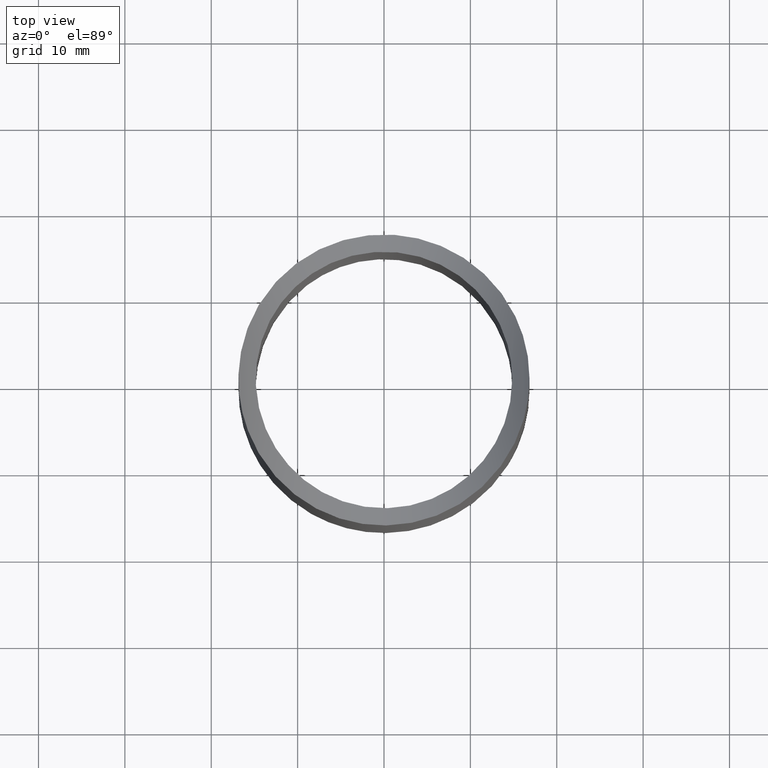
[diagram: clean part render]
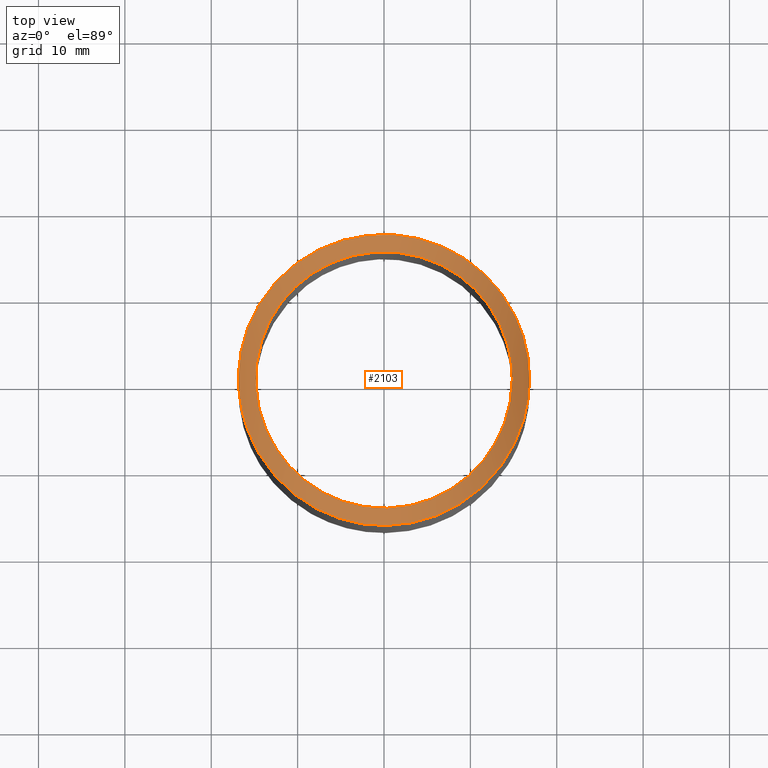
[diagram: same view with one face highlighted and labeled with its STEP entity id]
A machine part, top view. The second image highlights one B-rep face of the part: STEP entity #2103.
In plain terms, the highlighted cylindrical surface (partial cylindrical patch) has radius 21.2 mm, axis along (-0, 1, -0).
Its self-contained STEP definition (entity closure, byte-faithful):
#16 = B_SPLINE_CURVE_WITH_KNOTS ( 'NONE', 3,
 ( #2618, #9802, #12688, #4018, #5204, #7553, #11053, #7407, #9407, #12483, #3064, #11181, #6338, #8245, #2993, #4054, #1122, #9067, #4187, #2069, #9196, #12099, #12148, #2191, #6226, #6054, #3034, #5025, #6092, #10091, #10180, #5198, #9107, #4096, #5160, #4140, #11151, #11239, #6182, #5114, #2112, #66, #108, #4013, #12191, #10046, #3075, #7117, #11195, #12237, #7201, #11104, #8202, #10134, #2149, #11063, #3164, #7244, #13106, #10225, #6139, #7067, #5068, #12286, #3120, #149, #24, #7164, #1166, #1038, #2026, #996, #8077, #8118, #1076, #8163, #9150, #372, #6410, #2323, #4270, #6317, #3301, #1307, #6360, #5378, #9418, #283, #11417, #11327, #8287, #8334, #6272, #12510, #10312, #6452, #12329, #327, #7371, #8370, #9370, #2277, #5243, #7463, #7418, #4322, #11375, #5425, #197, #4412, #5334, #12460, #3211, #10272, #2235, #7287, #5293, #10453, #12373, #10362 ),
 .UNSPECIFIED., .T., .F.,
 ( 4, 2, 2, 2, 2, 2, 2, 2, 2, 2, 2, 2, 2, 2, 2, 2, 2, 2, 2, 2, 2, 2, 2, 2, 2, 2, 2, 2, 2, 2, 2, 2, 2, 2, 2, 2, 2, 2, 2, 2, 2, 2, 2, 2, 2, 2, 2, 2, 2, 2, 2, 2, 2, 2, 2, 2, 2, 2, 2, 4 ),
 ( 0.000000000000000000, 0.003488034584528456120, 0.004360043230660566246, 0.005232051876792678108, 0.006976069169056897494, 0.008720086461321116880, 0.01046410375358534060, 0.01395213833811378978, 0.01569615563037801351, 0.01744017292264223723, 0.02092820750717068815, 0.02267222479943490840, 0.02441624209169913212, 0.02616025938396335584, 0.02790427667622757610, 0.02964829396849179982, 0.03052030261462391342, 0.03139231126075602701, 0.03488034584528446752, 0.03662436313754869471, 0.03836838042981291497, 0.04011239772207713522, 0.04185641501434136241, 0.04534444959886980292, 0.04708846689113402317, 0.04883248418339824343, 0.05057650147566247062, 0.05232051876792669087, 0.05406453606019091113, 0.05493654470632301778, 0.05580855335245512444, 0.05755257064471935163, 0.05842457929085146523, 0.05929658793698357883, 0.06278462252151202627, 0.06452863981377625346, 0.06627265710604048066, 0.06976069169056892116, 0.07150470898283316223, 0.07324872627509738943, 0.07673676085962585769, 0.07848077815189008488, 0.08022479544415431207, 0.08196881273641853927, 0.08371283002868276646, 0.08545684732094699365, 0.08632885596707910725, 0.08720086461321122084, 0.09068889919773968911, 0.09243291649000391630, 0.09417693378226815737, 0.09592095107453239844, 0.09766496836679663951, 0.1011530029513251216, 0.1028970202435893488, 0.1046410375358535899, 0.1063850548281178310, 0.1081290721203820721, 0.1098730894126463131, 0.1116171067049105403 ),
 .UNSPECIFIED. ) ;
#24 = CARTESIAN_POINT ( 'NONE',  ( -16.55476409013702010, -3.153307364517309974, 30.78157480463063322 ) ) ;
#59 = CARTESIAN_POINT ( 'NONE',  ( -14.63968342570538539, -2.539688358878932295, 28.69075366799813409 ) ) ;
#66 = CARTESIAN_POINT ( 'NONE',  ( -9.994791040851373154, 13.57631378136462530, 25.32230521733956508 ) ) ;
#103 = CARTESIAN_POINT ( 'NONE',  ( -14.84882463106292327, -0.5354354199674785653, 28.89382656185967591 ) ) ;
#108 = CARTESIAN_POINT ( 'NONE',  ( -10.42069623016464242, 13.25206040174214372, 25.55676161521162726 ) ) ;
#142 = CARTESIAN_POINT ( 'NONE',  ( 6.766583398648191583, -13.25456488113425024, 23.91233643080122562 ) ) ;
#149 = CARTESIAN_POINT ( 'NONE',  ( -16.60641569126075368, -2.869196171511602333, 30.84653100392362290 ) ) ;
#163 = EDGE_LOOP ( 'NONE', ( #2137 ) ) ;
#191 = CARTESIAN_POINT ( 'NONE',  ( 14.84999999999999787, -1.022078380469964909, 28.89498017185701784 ) ) ;
#197 = CARTESIAN_POINT ( 'NONE',  ( 14.55453338318510248, -8.507048814336098275, 28.60647660889669552 ) ) ;
#278 = CARTESIAN_POINT ( 'NONE',  ( -6.305414289446934717, 13.45368617166488612, 23.77904236393999327 ) ) ;
#283 = CARTESIAN_POINT ( 'NONE',  ( -1.218559435307935868, -16.81613143072528516, 22.85194368814141797 ) ) ;
#320 = CARTESIAN_POINT ( 'NONE',  ( -1.042450288544810366, 14.84763967676929575, 22.82665333740894553 ) ) ;
#327 = CARTESIAN_POINT ( 'NONE',  ( 7.181140703023856098, -15.25348539933590075, 24.07089852805831143 ) ) ;
#366 = CARTESIAN_POINT ( 'NONE',  ( -2.039840482971174040, 14.74371743534629253, 22.89983089415597917 ) ) ;
#372 = CARTESIAN_POINT ( 'NONE',  ( -10.46238427054360898, -13.21900461332810828, 25.58045668143140006 ) ) ;
#410 = CARTESIAN_POINT ( 'NONE',  ( -14.03846989301306536, 4.866578523952101776, 28.13791582197551477 ) ) ;
#452 = CARTESIAN_POINT ( 'NONE',  ( 3.468010599276279748, 14.44801405734571098, 23.10473731706010980 ) ) ;
#756 = EDGE_CURVE ( 'NONE', #5934, #5934, #1001, .T. ) ;
#996 = CARTESIAN_POINT ( 'NONE',  ( -14.56266065314405900, -8.493040743961897121, 28.61418347935973472 ) ) ;
#1001 = B_SPLINE_CURVE_WITH_KNOTS ( 'NONE', 3,
 ( #1932, #191, #11275, #9144, #5239, #12322, #4182, #4091, #9280, #1254, #9321, #7281, #12280, #3205, #6219, #9191, #4265, #8240, #142, #1159, #4223, #4134, #3116, #6311, #8329, #10173, #8196, #2271, #3158, #11323, #2143, #10220, #6134, #11232, #7325, #11188, #12365, #12232, #1208, #10307, #7238, #2184, #9236, #5109, #7195, #10266, #8282, #2229, #5287, #11144, #12185, #59, #7158, #3249, #103, #6179, #5153, #1117, #1071, #8156, #3294, #5464, #9500, #410, #5421, #8411, #6493, #7412, #11501, #3465, #6354, #10535, #1349, #5373, #5328, #6447, #278, #4487, #6541, #1436, #8454, #6404, #11459, #366, #320, #2362, #12411, #10356, #7499, #452, #9412, #3380, #7364, #5505, #7542, #9455, #2410, #4317, #1477, #12505, #8502, #10447, #11368, #2451, #8547, #2496, #12543, #7457, #3424, #1395, #4406, #11544, #10490, #4448 ),
 .UNSPECIFIED., .T., .F.,
 ( 4, 2, 2, 2, 2, 2, 2, 2, 2, 2, 2, 2, 2, 2, 2, 2, 2, 2, 2, 2, 2, 2, 2, 2, 2, 2, 2, 2, 2, 2, 2, 2, 2, 2, 2, 2, 2, 2, 2, 2, 2, 2, 2, 2, 2, 2, 2, 2, 2, 2, 2, 2, 2, 2, 2, 2, 4 ),
 ( 0.000000000000000000, 0.003008249472028573512, 0.004512374208042860269, 0.006016498944057147025, 0.007520623680071432914, 0.009024748416085720537, 0.01203299788811428711, 0.01353712262412857213, 0.01504124736014285542, 0.01804949683217142026, 0.01880155920017856364, 0.01955362156818570354, 0.02105774630419999030, 0.02256187104021427706, 0.02406599577622856381, 0.02707424524825713386, 0.02857836998427141714, 0.03008249472028570390, 0.03158661945629999412, 0.03309074419231428088, 0.03609899366434284745, 0.03760311840035714115, 0.03910724313637142791, 0.04061136787238571466, 0.04211549260840000142, 0.04512374208042857493, 0.04662786681644286169, 0.04813199155245714844, 0.04963611628847143520, 0.05038817865647857858, 0.05114024102448572195, 0.05264436576050000871, 0.05414849049651429547, 0.05715673996854286898, 0.05866086470455715574, 0.06016498944057144249, 0.06317323891260001600, 0.06467736364861430276, 0.06618148838462858952, 0.06768561312064287627, 0.06843767548865001271, 0.06918973785665716303, 0.07219798732868573654, 0.07370211206470002330, 0.07520623680071431005, 0.07671036153672859681, 0.07821448627274288357, 0.08122273574477145708, 0.08272686048078574383, 0.08423098521680003059, 0.08573510995281431735, 0.08723923468882860410, 0.09024748416085719149, 0.09175160889687147825, 0.09325573363288576501, 0.09475985836890005176, 0.09626398310491432464 ),
 .UNSPECIFIED. ) ;
#1038 = CARTESIAN_POINT ( 'NONE',  ( -15.30126194324313715, -7.077023726170883933, 29.34825942966148205 ) ) ;
#1071 = CARTESIAN_POINT ( 'NONE',  ( -14.71979861049353566, 1.978268142494230108, 28.76818922553738389 ) ) ;
#1076 = CARTESIAN_POINT ( 'NONE',  ( -12.76849391860199923, -11.04515648032478659, 27.07783980516392575 ) ) ;
#1117 = CARTESIAN_POINT ( 'NONE',  ( -14.75156772750817424, 1.725603251462532350, 28.79895405805062580 ) ) ;
#1122 = CARTESIAN_POINT ( 'NONE',  ( 11.27517103013108368, 12.53305458214000900, 26.06571685462159493 ) ) ;
#1159 = CARTESIAN_POINT ( 'NONE',  ( 5.648936155405790416, -13.73576528190513102, 23.59013669648573952 ) ) ;
#1166 = CARTESIAN_POINT ( 'NONE',  ( -15.93264771859254481, -5.588807044560827997, 30.02599789362569638 ) ) ;
#1208 = CARTESIAN_POINT ( 'NONE',  ( -7.951602794355302706, -12.55075226376630049, 24.36804973485697801 ) ) ;
#1254 = CARTESIAN_POINT ( 'NONE',  ( 12.83490407123005994, -7.484141946869301343, 27.14935957658246579 ) ) ;
#1307 = CARTESIAN_POINT ( 'NONE',  ( -4.633092338830734569, -16.21049629165413108, 23.32993405497780870 ) ) ;
#1349 = CARTESIAN_POINT ( 'NONE',  ( -9.180628718901417074, 11.71087505510741700, 24.89682288117719011 ) ) ;
#1395 = CARTESIAN_POINT ( 'NONE',  ( 14.64420660872207947, 2.513609085024386847, 28.69508169606637438 ) ) ;
#1436 = CARTESIAN_POINT ( 'NONE',  ( -4.242900971634601781, 14.23311275967979306, 23.25251746835640176 ) ) ;
#1477 = CARTESIAN_POINT ( 'NONE',  ( 10.20873395633544511, 10.79459491755278222, 25.44097040580893676 ) ) ;
#1932 = CARTESIAN_POINT ( 'NONE',  ( 14.85000000000000142, 1.626303258728256651E-16, 28.89498017185702139 ) ) ;
#2026 = CARTESIAN_POINT ( 'NONE',  ( -15.06714064397420749, -7.562016873290339447, 29.10703687006266449 ) ) ;
#2069 = CARTESIAN_POINT ( 'NONE',  ( 8.708616580301018928, 14.46501147868135995, 24.67090779707388037 ) ) ;
#2103 = ADVANCED_FACE ( 'NONE', ( #2276, #7200 ), #11122, .F. ) ;
#2112 = CARTESIAN_POINT ( 'NONE',  ( -9.108053657860992303, 14.18645489211024824, 24.87480421381646423 ) ) ;
#2137 = ORIENTED_EDGE ( 'NONE', *, *, #756, .T. ) ;
#2143 = CARTESIAN_POINT ( 'NONE',  ( -1.975757420299651734, -14.75225499257278194, 22.89384598893459000 ) ) ;
#2149 = CARTESIAN_POINT ( 'NONE',  ( -16.37462835397577621, 4.014395240680865840, 30.55852878039925358 ) ) ;
#2184 = CARTESIAN_POINT ( 'NONE',  ( -10.85600257648951228, -10.14358103451657378, 25.81142779856725156 ) ) ;
#2191 = CARTESIAN_POINT ( 'NONE',  ( 4.608666158872870788, 16.21741378191370941, 23.32451087310631621 ) ) ;
#2229 = CARTESIAN_POINT ( 'NONE',  ( -13.26470119852984908, -6.692857623037583359, 27.48503913512155705 ) ) ;
#2235 = CARTESIAN_POINT ( 'NONE',  ( 16.37965679222789106, -3.993839940836798164, 30.56465935008198542 ) ) ;
#2271 = CARTESIAN_POINT ( 'NONE',  ( 1.055357571539615735, -14.82104639308031402, 22.84530496254446419 ) ) ;
#2276 = FACE_BOUND ( 'NONE', #163, .T. ) ;
#2277 = CARTESIAN_POINT ( 'NONE',  ( 9.995180183919519123, -13.57606078780679582, 25.32249238037316630 ) ) ;
#2323 = CARTESIAN_POINT ( 'NONE',  ( -8.726966367399729307, -14.45335385199788902, 24.67956541262542558 ) ) ;
#2362 = CARTESIAN_POINT ( 'NONE',  ( 0.4699493523302542552, 14.85112114454863885, 22.82421467105257662 ) ) ;
#2410 = CARTESIAN_POINT ( 'NONE',  ( 9.135684806652815126, 11.71688488068667056, 24.89009534328083006 ) ) ;
#2451 = CARTESIAN_POINT ( 'NONE',  ( 12.84858299248709201, 7.505008801628276771, 27.14981320772259465 ) ) ;
#2496 = CARTESIAN_POINT ( 'NONE',  ( 13.85629676120118070, 5.362177137824668982, 27.97811738429405537 ) ) ;
#2618 = CARTESIAN_POINT ( 'NONE',  ( 16.85000000000000853, 9.215718466126787689E-16, 31.15963953089540084 ) ) ;
#2993 = CARTESIAN_POINT ( 'NONE',  ( 12.75930261612571393, 11.05511620359124336, 27.07121819242074778 ) ) ;
#3034 = CARTESIAN_POINT ( 'NONE',  ( 2.363922115697564941, 16.69367290201030585, 22.94907085999129848 ) ) ;
#3064 = CARTESIAN_POINT ( 'NONE',  ( 15.06600544362908067, 7.564417200418764864, 29.10585610091618847 ) ) ;
#3075 = CARTESIAN_POINT ( 'NONE',  ( -13.39389977049335911, 10.27758179155229357, 27.57350999852649309 ) ) ;
#3116 = CARTESIAN_POINT ( 'NONE',  ( 4.722722915636610175, -14.08120449735659108, 23.35630852601813601 ) ) ;
#3120 = CARTESIAN_POINT ( 'NONE',  ( -16.69471313242517496, -2.300409139174631523, 30.95856817575938535 ) ) ;
#3158 = CARTESIAN_POINT ( 'NONE',  ( 0.5430236230582313750, -14.84871434085134823, 22.82590056649464927 ) ) ;
#3164 = CARTESIAN_POINT ( 'NONE',  ( -16.69668131234897857, 2.340504293676494818, 30.96090336186388114 ) ) ;
#3205 = CARTESIAN_POINT ( 'NONE',  ( 10.22384875093736589, -10.78027464046264505, 25.44929097198022916 ) ) ;
#3211 = CARTESIAN_POINT ( 'NONE',  ( 15.90281625341952498, -5.597182806816921818, 30.00339353574807788 ) ) ;
#3249 = CARTESIAN_POINT ( 'NONE',  ( -14.82232220753867047, -1.036460113925612214, 28.86769057165713903 ) ) ;
#3294 = CARTESIAN_POINT ( 'NONE',  ( -14.60033200529916542, 2.722993268078868656, 28.65376142518395497 ) ) ;
#3301 = CARTESIAN_POINT ( 'NONE',  ( -5.715230646049785257, -15.86133264591338765, 23.60228133300067555 ) ) ;
#3380 = CARTESIAN_POINT ( 'NONE',  ( 4.897576337131939184, 14.02792802467772582, 23.39277724995771734 ) ) ;
#3381 = ORIENTED_EDGE ( 'NONE', *, *, #9884, .T. ) ;
#3424 = CARTESIAN_POINT ( 'NONE',  ( 14.44266306515989307, 3.490057509199949948, 28.50505586380914025 ) ) ;
#3465 = CARTESIAN_POINT ( 'NONE',  ( -11.20217814193923189, 9.759876180064354756, 26.02286608165332993 ) ) ;
#3857 = AXIS2_PLACEMENT_3D ( 'NONE', #10025, #11042, #6032 ) ;
#4013 = CARTESIAN_POINT ( 'NONE',  ( -11.23939550682409561, 12.56519014794332811, 26.04326683548215726 ) ) ;
#4018 = CARTESIAN_POINT ( 'NONE',  ( 16.43685454055621520, 3.719315587397255207, 30.63551266623164082 ) ) ;
#4054 = CARTESIAN_POINT ( 'NONE',  ( 11.66102715465259365, 12.17440635430119222, 26.31460542772481404 ) ) ;
#4091 = CARTESIAN_POINT ( 'NONE',  ( 13.49215805804097457, -6.222029440599342820, 27.67075749353879388 ) ) ;
#4096 = CARTESIAN_POINT ( 'NONE',  ( -2.857251977327141645, 16.60853101359290562, 23.01642874321899868 ) ) ;
#4134 = CARTESIAN_POINT ( 'NONE',  ( 4.958827252707279420, -13.99976851913664433, 23.41172800978674928 ) ) ;
#4140 = CARTESIAN_POINT ( 'NONE',  ( -4.563070841124321042, 16.26170907903825835, 23.29001353415834785 ) ) ;
#4182 = CARTESIAN_POINT ( 'NONE',  ( 13.86511744738337804, -5.339522225172391501, 27.98573271020251951 ) ) ;
#4187 = CARTESIAN_POINT ( 'NONE',  ( 10.03345984452741924, 13.54771931003610419, 25.34305937586326252 ) ) ;
#4223 = CARTESIAN_POINT ( 'NONE',  ( 5.421586111606212732, -13.82714324602303968, 23.52857704624679869 ) ) ;
#4265 = CARTESIAN_POINT ( 'NONE',  ( 8.771364284212022966, -11.99205178433446761, 24.71997983258699350 ) ) ;
#4270 = CARTESIAN_POINT ( 'NONE',  ( -7.784169194823971516, -14.98589303535731077, 24.27627521433478819 ) ) ;
#4317 = CARTESIAN_POINT ( 'NONE',  ( 9.862659689964765164, 11.11188876985884555, 25.25445773430654839 ) ) ;
#4322 = CARTESIAN_POINT ( 'NONE',  ( 12.73972826121695512, -11.07831283270831157, 27.05614233278994618 ) ) ;
#4406 = CARTESIAN_POINT ( 'NONE',  ( 14.72061292428705492, 2.019618802557090920, 28.76889631430471894 ) ) ;
#4412 = CARTESIAN_POINT ( 'NONE',  ( 15.06117546962990694, -7.573989371841300056, 29.10098247664966564 ) ) ;
#4448 = CARTESIAN_POINT ( 'NONE',  ( 14.85000000000000142, 1.626303258728256651E-16, 28.89498017185702139 ) ) ;
#4487 = CARTESIAN_POINT ( 'NONE',  ( -5.409915752190937788, 13.83808991593149251, 23.52158902726440459 ) ) ;
#4820 = VERTEX_POINT ( 'NONE', #5633 ) ;
#5025 = CARTESIAN_POINT ( 'NONE',  ( 1.196877386896234796, 16.81767900898140056, 22.85071367425837963 ) ) ;
#5068 = CARTESIAN_POINT ( 'NONE',  ( -16.82038613588199283, -1.153393338050496375, 31.12058398438669826 ) ) ;
#5109 = CARTESIAN_POINT ( 'NONE',  ( -11.76535505781020063, -9.072885345401457968, 26.38581115410169886 ) ) ;
#5114 = CARTESIAN_POINT ( 'NONE',  ( -8.647231188405044122, 14.47234560185099284, 24.66174318504227969 ) ) ;
#5153 = CARTESIAN_POINT ( 'NONE',  ( -14.82687259197063945, 0.9706580985830020047, 28.87215370222732602 ) ) ;
#5160 = CARTESIAN_POINT ( 'NONE',  ( -3.145150991523118833, 16.55640114412084074, 23.05762998864650726 ) ) ;
#5198 = CARTESIAN_POINT ( 'NONE',  ( -1.993930436648130966, 16.73412311464078428, 22.91699069149763446 ) ) ;
#5204 = CARTESIAN_POINT ( 'NONE',  ( 16.37165564442995347, 3.996236745770081367, 30.55573089383639029 ) ) ;
#5239 = CARTESIAN_POINT ( 'NONE',  ( 14.32409024340396897, -3.947673342937946916, 28.39493170033822267 ) ) ;
#5243 = CARTESIAN_POINT ( 'NONE',  ( 10.42167427611399155, -13.25131939410903215, 25.55729806795227077 ) ) ;
#5287 = CARTESIAN_POINT ( 'NONE',  ( -13.47478509253593160, -6.259823952817777482, 27.65639499372817056 ) ) ;
#5293 = CARTESIAN_POINT ( 'NONE',  ( 16.69938508037639835, -2.320488834739478534, 30.96437022078895041 ) ) ;
#5328 = CARTESIAN_POINT ( 'NONE',  ( -7.591350487219891363, 12.77220642373018578, 24.22562535036222187 ) ) ;
#5334 = CARTESIAN_POINT ( 'NONE',  ( 15.29304033322279111, -7.094640924644827429, 29.33969853746524237 ) ) ;
#5373 = CARTESIAN_POINT ( 'NONE',  ( -8.002916656493315628, 12.51808030597684862, 24.38890820758710376 ) ) ;
#5378 = CARTESIAN_POINT ( 'NONE',  ( -2.958333458842771435, -16.59821557124749702, 23.02469510045565926 ) ) ;
#5421 = CARTESIAN_POINT ( 'NONE',  ( -13.86995888693830814, 5.327233501816452055, 27.98989845505136032 ) ) ;
#5425 = CARTESIAN_POINT ( 'NONE',  ( 14.27882436257640109, -8.961815852038725438, 28.34994163430497949 ) ) ;
#5464 = CARTESIAN_POINT ( 'NONE',  ( -14.45123279058774912, 3.454260969310928520, 28.51305135427062609 ) ) ;
#5505 = CARTESIAN_POINT ( 'NONE',  ( 6.721704947727878299, 13.27802546947837392, 23.89686323416569280 ) ) ;
#5633 = CARTESIAN_POINT ( 'NONE',  ( 16.85000000000000142, 0.000000000000000000, 31.15963953089538663 ) ) ;
#5934 = VERTEX_POINT ( 'NONE', #11713 ) ;
#6032 = DIRECTION ( 'NONE',  ( 0.000000000000000000, 0.000000000000000000, 1.000000000000000000 ) ) ;
#6054 = CARTESIAN_POINT ( 'NONE',  ( 2.935858920294800889, 16.60217875596199377, 23.02156045030877607 ) ) ;
#6092 = CARTESIAN_POINT ( 'NONE',  ( 0.6127552656414515520, 16.84887386415253019, 22.82589506494136344 ) ) ;
#6134 = CARTESIAN_POINT ( 'NONE',  ( -3.942216867598557162, -14.32575806810458197, 23.18913507854782807 ) ) ;
#6139 = CARTESIAN_POINT ( 'NONE',  ( -16.84978754025977921, 0.3048055059478298467, 31.15936126864234268 ) ) ;
#6179 = CARTESIAN_POINT ( 'NONE',  ( -14.85109909157401020, 0.4681236858633965880, 28.89605891638828794 ) ) ;
#6182 = CARTESIAN_POINT ( 'NONE',  ( -7.687648266521955875, 15.00411472148166325, 24.26113433971042355 ) ) ;
#6219 = CARTESIAN_POINT ( 'NONE',  ( 9.876524031189015673, -11.09961843200092524, 25.26173230998533015 ) ) ;
#6226 = CARTESIAN_POINT ( 'NONE',  ( 4.058234055895876935, 16.36405644674807647, 23.20927332844286539 ) ) ;
#6272 = CARTESIAN_POINT ( 'NONE',  ( 2.268151588632923321, -16.69918781907057337, 22.94468587042166163 ) ) ;
#6311 = CARTESIAN_POINT ( 'NONE',  ( 4.011011730049459878, -14.30671213935695540, 23.20223695472847680 ) ) ;
#6317 = CARTESIAN_POINT ( 'NONE',  ( -6.249404769565356510, -15.65820503941425734, 23.75985022990128570 ) ) ;
#6338 = CARTESIAN_POINT ( 'NONE',  ( 14.28582278510367587, 8.950453626376383198, 28.35639237131934820 ) ) ;
#6354 = CARTESIAN_POINT ( 'NONE',  ( -10.88684439012736860, 10.11031077034298775, 25.82992319702066908 ) ) ;
#6360 = CARTESIAN_POINT ( 'NONE',  ( -4.081890298430192132, -16.35819881878482107, 23.21388003208102901 ) ) ;
#6404 = CARTESIAN_POINT ( 'NONE',  ( -3.519467371716863191, 14.42908677575285203, 23.11773022390127252 ) ) ;
#6410 = CARTESIAN_POINT ( 'NONE',  ( -10.04117084798385306, -13.54184654649417929, 25.34730385353622140 ) ) ;
#6447 = CARTESIAN_POINT ( 'NONE',  ( -6.741536623641492199, 13.24045101581848982, 23.92038553742865759 ) ) ;
#6452 = CARTESIAN_POINT ( 'NONE',  ( 4.553832379075150705, -16.26448532530344337, 23.28783480138556072 ) ) ;
#6493 = CARTESIAN_POINT ( 'NONE',  ( -12.85819171063240773, 7.487732140332075126, 27.15735018066240514 ) ) ;
#6541 = CARTESIAN_POINT ( 'NONE',  ( -4.950543937199634037, 14.00926281662553485, 23.40546868971070538 ) ) ;
#7067 = CARTESIAN_POINT ( 'NONE',  ( -16.85041214219169348, -0.5736696189260906964, 31.16017932075633112 ) ) ;
#7117 = CARTESIAN_POINT ( 'NONE',  ( -14.27322093724248120, 8.970693881338300812, 28.34484749247271651 ) ) ;
#7158 = CARTESIAN_POINT ( 'NONE',  ( -14.71822229448144448, -2.037011949420603152, 28.76658601882701660 ) ) ;
#7164 = CARTESIAN_POINT ( 'NONE',  ( -16.26480880967746501, -4.547029472962409891, 30.42233871069397466 ) ) ;
#7195 = CARTESIAN_POINT ( 'NONE',  ( -12.04425194370499774, -8.699240954842657914, 26.57566927795544487 ) ) ;
#7200 = FACE_OUTER_BOUND ( 'NONE', #12774, .T. ) ;
#7201 = CARTESIAN_POINT ( 'NONE',  ( -15.28685858671097009, 7.107873146240879514, 29.33326496767993419 ) ) ;
#7238 = CARTESIAN_POINT ( 'NONE',  ( -9.857475223261548791, -11.14642520277175031, 25.24047979497517247 ) ) ;
#7244 = CARTESIAN_POINT ( 'NONE',  ( -16.78758264084560636, 1.477574321479142361, 31.07820441070628448 ) ) ;
#7281 = CARTESIAN_POINT ( 'NONE',  ( 11.80130999445691486, -9.062980031830573324, 26.40156720060182494 ) ) ;
#7287 = CARTESIAN_POINT ( 'NONE',  ( 16.61106262273884226, -2.883836446064370396, 30.85129415895204019 ) ) ;
#7325 = CARTESIAN_POINT ( 'NONE',  ( -5.350256947424568921, -13.86130094833920623, 23.50590784509005715 ) ) ;
#7364 = CARTESIAN_POINT ( 'NONE',  ( 5.366141996116707169, 13.85525945338516784, 23.50999763966325773 ) ) ;
#7371 = CARTESIAN_POINT ( 'NONE',  ( 7.683900622646631540, -15.00607227248791098, 24.25965049253109740 ) ) ;
#7407 = CARTESIAN_POINT ( 'NONE',  ( 15.90487270250956442, 5.591031431789052597, 30.00575465871712311 ) ) ;
#7412 = CARTESIAN_POINT ( 'NONE',  ( -12.07643386367189819, 8.654561040546367323, 26.59793997083406580 ) ) ;
#7418 = CARTESIAN_POINT ( 'NONE',  ( 11.63181766590042088, -12.20246350678815972, 26.29532094305800172 ) ) ;
#7457 = CARTESIAN_POINT ( 'NONE',  ( 14.31639251504350696, 3.975336673667563048, 28.38787382931094072 ) ) ;
#7463 = CARTESIAN_POINT ( 'NONE',  ( 11.24136333891619799, -12.56345934385020868, 26.04448110729708077 ) ) ;
#7499 = CARTESIAN_POINT ( 'NONE',  ( 2.488903979172041758, 14.64846629174582660, 22.96580141072881176 ) ) ;
#7542 = CARTESIAN_POINT ( 'NONE',  ( 7.565741213923386610, 12.81400793434171881, 24.20225533650550176 ) ) ;
#7553 = CARTESIAN_POINT ( 'NONE',  ( 16.22972857346203313, 4.538383754134050818, 30.38505024841372659 ) ) ;
#8077 = CARTESIAN_POINT ( 'NONE',  ( -14.29162032419619344, -8.941108165564608967, 28.36171386546280715 ) ) ;
#8118 = CARTESIAN_POINT ( 'NONE',  ( -13.42227891237702586, -10.23964040753259575, 27.59702980000847106 ) ) ;
#8156 = CARTESIAN_POINT ( 'NONE',  ( -14.64419349574168727, 2.476613178591222209, 28.69560526307306958 ) ) ;
#8163 = CARTESIAN_POINT ( 'NONE',  ( -11.66338928150708831, -12.17229251719185967, 26.31608926634027412 ) ) ;
#8196 = CARTESIAN_POINT ( 'NONE',  ( 2.059140359165246625, -14.71520087429668955, 22.91923769524821708 ) ) ;
#8202 = CARTESIAN_POINT ( 'NONE',  ( -15.89690430299303969, 5.613851343078686718, 29.99668573947647232 ) ) ;
#8240 = CARTESIAN_POINT ( 'NONE',  ( 7.600193638323555767, -12.79273646558957545, 24.21592135049489514 ) ) ;
#8245 = CARTESIAN_POINT ( 'NONE',  ( 13.41307785266284647, 10.25198778674706901, 27.58938826224732210 ) ) ;
#8282 = CARTESIAN_POINT ( 'NONE',  ( -12.81144491126041984, -7.524195660286290277, 27.13152544371852315 ) ) ;
#8287 = CARTESIAN_POINT ( 'NONE',  ( 1.112588759422263207, -16.82326292577762317, 22.84627444567894372 ) ) ;
#8329 = CARTESIAN_POINT ( 'NONE',  ( 3.529851409285365449, -14.43298966858329280, 23.11511555860909795 ) ) ;
#8334 = CARTESIAN_POINT ( 'NONE',  ( 1.979650176026427344, -16.73582586802688255, 22.91564063871739165 ) ) ;
#8370 = CARTESIAN_POINT ( 'NONE',  ( 8.645399450756229953, -14.47347926943289487, 24.66089820652724640 ) ) ;
#8411 = CARTESIAN_POINT ( 'NONE',  ( -13.30752336638674294, 6.660557565700396587, 27.51467637561992063 ) ) ;
#8454 = CARTESIAN_POINT ( 'NONE',  ( -4.003916530981642907, 14.30223227946313536, 23.20507606920517674 ) ) ;
#8502 = CARTESIAN_POINT ( 'NONE',  ( 11.18157445229064884, 9.783394182038625431, 26.01007253859787127 ) ) ;
#8547 = CARTESIAN_POINT ( 'NONE',  ( 13.29743061028497486, 6.679105743450392652, 27.50664821686086015 ) ) ;
#9067 = CARTESIAN_POINT ( 'NONE',  ( 10.46001579497637479, 13.22100633410530790, 25.57904102727576756 ) ) ;
#9107 = CARTESIAN_POINT ( 'NONE',  ( -2.282024476962674520, 16.69729186359154482, 22.94618790349588267 ) ) ;
#9144 = CARTESIAN_POINT ( 'NONE',  ( 14.44795666962252589, -3.467458691488791267, 28.51000157717251682 ) ) ;
#9150 = CARTESIAN_POINT ( 'NONE',  ( -11.27269707346088623, -12.53514532351717925, 26.06423822481189134 ) ) ;
#9191 = CARTESIAN_POINT ( 'NONE',  ( 9.148425549297892090, -11.70698792361307028, 24.89616701639233298 ) ) ;
#9196 = CARTESIAN_POINT ( 'NONE',  ( 7.760273162590312523, 14.99840731050423415, 24.26676567232548720 ) ) ;
#9236 = CARTESIAN_POINT ( 'NONE',  ( -11.17168871991021817, -9.794600516231964704, 26.00395857828872437 ) ) ;
#9280 = CARTESIAN_POINT ( 'NONE',  ( 13.28603568256477452, -6.650443522065433655, 27.50218976506184632 ) ) ;
#9321 = CARTESIAN_POINT ( 'NONE',  ( 12.58872779925378005, -7.891003646999037890, 26.96428466618887043 ) ) ;
#9370 = CARTESIAN_POINT ( 'NONE',  ( 9.107037764326616269, -14.18713912606667549, 24.87430076132086043 ) ) ;
#9407 = CARTESIAN_POINT ( 'NONE',  ( 15.71686554208496744, 6.098361508694393862, 29.79423311940516683 ) ) ;
#9412 = CARTESIAN_POINT ( 'NONE',  ( 3.949644876475323141, 14.32373289311504294, 23.19052916594402092 ) ) ;
#9418 = CARTESIAN_POINT ( 'NONE',  ( -2.385984480567156396, -16.69054347381467807, 22.95155038345631482 ) ) ;
#9455 = CARTESIAN_POINT ( 'NONE',  ( 8.752917842346148447, 12.00575337534034581, 24.71148554062005687 ) ) ;
#9500 = CARTESIAN_POINT ( 'NONE',  ( -14.32854243950816731, 3.931296863127937247, 28.39902956050781668 ) ) ;
#9802 = CARTESIAN_POINT ( 'NONE',  ( 16.85000000000000497, 1.181816974257915875, 31.15963953089539373 ) ) ;
#9884 = EDGE_CURVE ( 'NONE', #4820, #4820, #16, .T. ) ;
#10025 = CARTESIAN_POINT ( 'NONE',  ( -7.288179263425684655E-15, -16.85000000000000142, 44.02499999999999858 ) ) ;
#10046 = CARTESIAN_POINT ( 'NONE',  ( -12.73527001919717172, 11.08326113548437242, 27.05287231180940921 ) ) ;
#10091 = CARTESIAN_POINT ( 'NONE',  ( -0.5491712452227679453, 16.85106615170428768, 22.82415261111907512 ) ) ;
#10134 = CARTESIAN_POINT ( 'NONE',  ( -16.23008893253742002, 4.561919175372502799, 30.38354184288010984 ) ) ;
#10173 = CARTESIAN_POINT ( 'NONE',  ( 2.553914908471907275, -14.63723199192219937, 22.97361911977647964 ) ) ;
#10180 = CARTESIAN_POINT ( 'NONE',  ( -1.128217563670329548, 16.82219263763235162, 22.84712505124552351 ) ) ;
#10220 = CARTESIAN_POINT ( 'NONE',  ( -3.453080945496846521, -14.45168738145432030, 23.10220014458736415 ) ) ;
#10225 = CARTESIAN_POINT ( 'NONE',  ( -16.84185556484301571, 0.6005636208193545489, 31.14895412995364765 ) ) ;
#10266 = CARTESIAN_POINT ( 'NONE',  ( -12.56729503433856010, -7.924890762259290788, 26.94851783737005846 ) ) ;
#10272 = CARTESIAN_POINT ( 'NONE',  ( 16.23544751361628258, -4.542935636299709756, 30.38992549851719716 ) ) ;
#10307 = CARTESIAN_POINT ( 'NONE',  ( -9.133527232630701320, -11.74770862054930376, 24.87419314512271384 ) ) ;
#10312 = CARTESIAN_POINT ( 'NONE',  ( 3.132493783242030094, -16.55881203355355069, 23.05572614964555100 ) ) ;
#10356 = CARTESIAN_POINT ( 'NONE',  ( 1.991434687108508905, 14.72464534445752093, 22.91264919734913263 ) ) ;
#10362 = CARTESIAN_POINT ( 'NONE',  ( 16.85000000000000853, 9.215718466126787689E-16, 31.15963953089540084 ) ) ;
#10447 = CARTESIAN_POINT ( 'NONE',  ( 11.77657499125998797, 9.058404408531117724, 26.39328141822445417 ) ) ;
#10453 = CARTESIAN_POINT ( 'NONE',  ( 16.81884699925302940, -1.174953663156957040, 31.11857145031866168 ) ) ;
#10490 = CARTESIAN_POINT ( 'NONE',  ( 14.85000000000000320, 0.5110391902349790128, 28.89498017185702139 ) ) ;
#10535 = CARTESIAN_POINT ( 'NONE',  ( -9.898943506028555106, 11.10902678255388665, 25.26259823399168170 ) ) ;
#11042 = DIRECTION ( 'NONE',  ( -0.000000000000000000, 1.000000000000000000, -0.000000000000000000 ) ) ;
#11053 = CARTESIAN_POINT ( 'NONE',  ( 16.15279100600988471, 4.804723691820167453, 30.29388946145670403 ) ) ;
#11063 = CARTESIAN_POINT ( 'NONE',  ( -16.60739948715533387, 2.904841674388058070, 30.84666235395390643 ) ) ;
#11104 = CARTESIAN_POINT ( 'NONE',  ( -15.70777446802023825, 6.121742184620557303, 29.78418032654678527 ) ) ;
#11122 = CYLINDRICAL_SURFACE ( 'NONE', #3857, 21.20000000000000284 ) ;
#11144 = CARTESIAN_POINT ( 'NONE',  ( -14.04159870749304595, -4.928176394867379351, 28.13419264784720752 ) ) ;
#11151 = CARTESIAN_POINT ( 'NONE',  ( -5.641703537684155556, 15.91699381315877027, 23.56069811230852196 ) ) ;
#11181 = CARTESIAN_POINT ( 'NONE',  ( 14.55938141211966474, 8.498784648752831572, 28.61105217326022654 ) ) ;
#11188 = CARTESIAN_POINT ( 'NONE',  ( -6.249250332288379894, -13.47990295470586020, 23.76160288723667335 ) ) ;
#11195 = CARTESIAN_POINT ( 'NONE',  ( -14.54874586222459776, 8.516875777173675388, 28.60102398438430527 ) ) ;
#11232 = CARTESIAN_POINT ( 'NONE',  ( -4.889157883607646582, -14.03084292714444459, 23.39079354456933046 ) ) ;
#11239 = CARTESIAN_POINT ( 'NONE',  ( -7.186026968266546078, 15.25115632092071394, 24.07267847966635443 ) ) ;
#11275 = CARTESIAN_POINT ( 'NONE',  ( 14.74580186103794688, -2.015121408971227268, 28.79096444058477289 ) ) ;
#11323 = CARTESIAN_POINT ( 'NONE',  ( -0.9769159216564194947, -14.85243765203642319, 22.82329249637190571 ) ) ;
#11327 = CARTESIAN_POINT ( 'NONE',  ( 0.5324751576219249882, -16.85164486523669325, 22.82369264463234515 ) ) ;
#11368 = CARTESIAN_POINT ( 'NONE',  ( 12.05942334210180888, 8.678421179155039411, 26.58611207091345463 ) ) ;
#11375 = CARTESIAN_POINT ( 'NONE',  ( 13.39901119675901597, -10.27106971652703393, 27.57764098008038900 ) ) ;
#11417 = CARTESIAN_POINT ( 'NONE',  ( -0.6319328553525147552, -16.84820837133339566, 22.82642400450970754 ) ) ;
#11459 = CARTESIAN_POINT ( 'NONE',  ( -3.273145813235136536, 14.48697673078764403, 23.07771798252919737 ) ) ;
#11501 = CARTESIAN_POINT ( 'NONE',  ( -11.79768345117599182, 9.030982413878172466, 26.40738705375563100 ) ) ;
#11544 = CARTESIAN_POINT ( 'NONE',  ( 14.82350591515614902, 1.019302387743467708, 28.86885217416038429 ) ) ;
#11713 = CARTESIAN_POINT ( 'NONE',  ( 14.85000000000000142, 0.000000000000000000, 28.89498017185702139 ) ) ;
#12099 = CARTESIAN_POINT ( 'NONE',  ( 6.222044402171041710, 15.66912741060789571, 23.75140684822395087 ) ) ;
#12148 = CARTESIAN_POINT ( 'NONE',  ( 5.688972128401093009, 15.87072492547270741, 23.59498164516586627 ) ) ;
#12185 = CARTESIAN_POINT ( 'NONE',  ( -14.33523692549940698, -4.001858736910941516, 28.40390055753627507 ) ) ;
#12191 = CARTESIAN_POINT ( 'NONE',  ( -11.62899900790144692, 12.20510966927489704, 26.29349027139104322 ) ) ;
#12232 = CARTESIAN_POINT ( 'NONE',  ( -7.540531483646296884, -12.80231152691943564, 24.20618176416755318 ) ) ;
#12237 = CARTESIAN_POINT ( 'NONE',  ( -15.05504931669177715, 7.586083919874819337, 29.09481137540909756 ) ) ;
#12280 = CARTESIAN_POINT ( 'NONE',  ( 11.21137008292260795, -9.782806309394567634, 26.01607505800127029 ) ) ;
#12286 = CARTESIAN_POINT ( 'NONE',  ( -16.73161153233589715, -2.014690303523576809, 31.00595582820875862 ) ) ;
#12322 = CARTESIAN_POINT ( 'NONE',  ( 14.03196869627065091, -4.885441702712669532, 28.13215724421358033 ) ) ;
#12329 = CARTESIAN_POINT ( 'NONE',  ( 5.634496390818593881, -15.91965278890738666, 23.55863149411854707 ) ) ;
#12365 = CARTESIAN_POINT ( 'NONE',  ( -6.687140226398589071, -13.26804247357676658, 23.90219386086256392 ) ) ;
#12373 = CARTESIAN_POINT ( 'NONE',  ( 16.85000000000000853, -0.5909084871289564944, 31.15963953089540439 ) ) ;
#12411 = CARTESIAN_POINT ( 'NONE',  ( 0.9796921409819041582, 14.82636826542399433, 22.84157790072363525 ) ) ;
#12460 = CARTESIAN_POINT ( 'NONE',  ( 15.71384907628826255, -6.106223029898144361, 29.79088222309723122 ) ) ;
#12483 = CARTESIAN_POINT ( 'NONE',  ( 15.29744147855247682, 7.085065967862639091, 29.34430271791988076 ) ) ;
#12505 = CARTESIAN_POINT ( 'NONE',  ( 10.86819329077154705, 10.13034565154224964, 25.81877085875732547 ) ) ;
#12510 = CARTESIAN_POINT ( 'NONE',  ( 2.844109948040148161, -16.61079239678445063, 23.01464079235726601 ) ) ;
#12543 = CARTESIAN_POINT ( 'NONE',  ( 14.02332888392887611, 4.910055328299879562, 28.12452653107434486 ) ) ;
#12688 = CARTESIAN_POINT ( 'NONE',  ( 16.72742372598743898, 2.326311567315081597, 30.99540954334985798 ) ) ;
#12774 = EDGE_LOOP ( 'NONE', ( #3381 ) ) ;
#13106 = CARTESIAN_POINT ( 'NONE',  ( -16.81069167463624225, 1.187190359631229875, 31.10829370408668026 ) ) ;